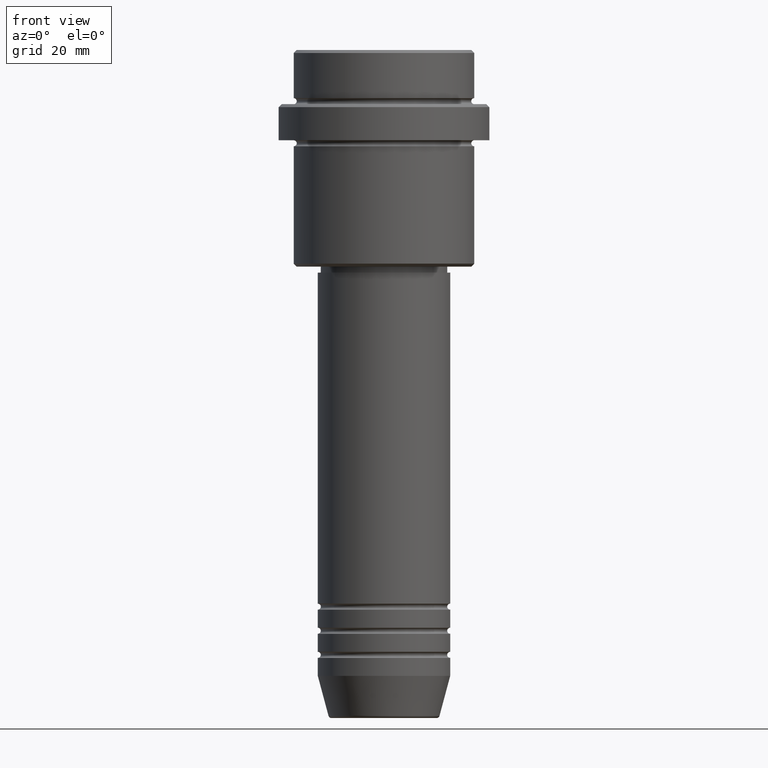
[diagram: clean part render]
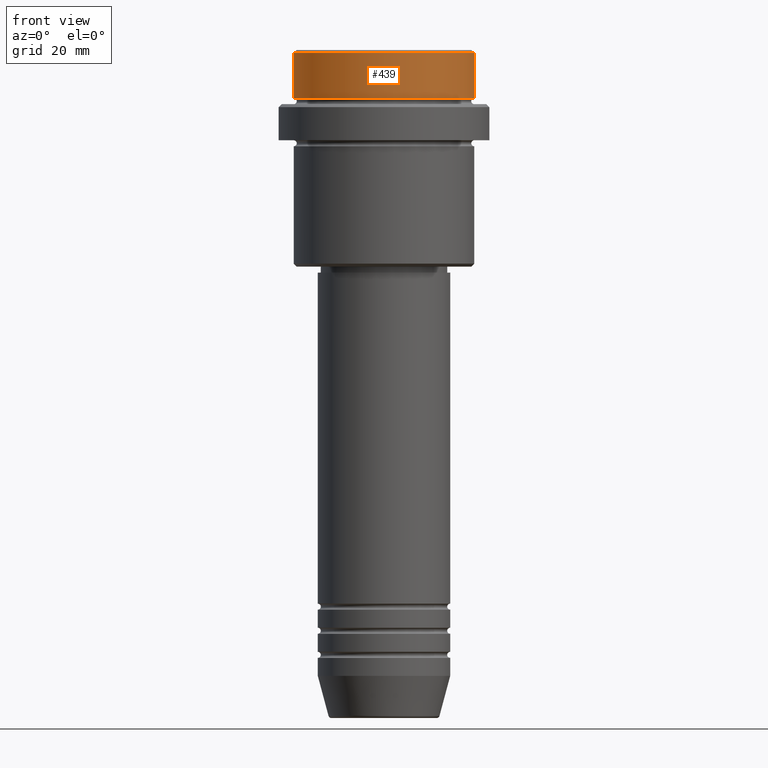
[diagram: same view with one face highlighted and labeled with its STEP entity id]
A machine part, front view. The second image highlights one B-rep face of the part: STEP entity #439.
In plain terms, the highlighted cylindrical surface (partial cylindrical patch) has radius 15 mm, axis along (-0, -0, 1).
Its self-contained STEP definition (entity closure, byte-faithful):
#1 = DIRECTION ( 'NONE',  ( 1.000000000000000000, 0.000000000000000000, 0.000000000000000000 ) ) ;
#15 = CARTESIAN_POINT ( 'NONE',  ( 0.000000000000000000, 0.000000000000000000, -7.999999999999998224 ) ) ;
#55 = VERTEX_POINT ( 'NONE', #1334 ) ;
#63 = EDGE_LOOP ( 'NONE', ( #408, #516, #904, #1338 ) ) ;
#175 = VERTEX_POINT ( 'NONE', #430 ) ;
#189 = CYLINDRICAL_SURFACE ( 'NONE', #1115, 15.00000000000000000 ) ;
#223 = AXIS2_PLACEMENT_3D ( 'NONE', #631, #873, #1282 ) ;
#285 = CIRCLE ( 'NONE', #223, 15.00000000000000000 ) ;
#295 = DIRECTION ( 'NONE',  ( 1.000000000000000000, 0.000000000000000000, 0.000000000000000000 ) ) ;
#306 = DIRECTION ( 'NONE',  ( -0.000000000000000000, -0.000000000000000000, 1.000000000000000000 ) ) ;
#408 = ORIENTED_EDGE ( 'NONE', *, *, #720, .F. ) ;
#430 = CARTESIAN_POINT ( 'NONE',  ( 15.00000000000000000, 0.000000000000000000, -0.4999999999999970024 ) ) ;
#439 = ADVANCED_FACE ( 'NONE', ( #1348 ), #189, .T. ) ;
#488 = LINE ( 'NONE', #932, #787 ) ;
#516 = ORIENTED_EDGE ( 'NONE', *, *, #1037, .T. ) ;
#565 = LINE ( 'NONE', #1396, #1353 ) ;
#631 = CARTESIAN_POINT ( 'NONE',  ( 0.000000000000000000, 0.000000000000000000, -0.4999999999999970024 ) ) ;
#695 = CIRCLE ( 'NONE', #809, 15.00000000000000000 ) ;
#696 = VERTEX_POINT ( 'NONE', #723 ) ;
#720 = EDGE_CURVE ( 'NONE', #800, #55, #565, .T. ) ;
#723 = CARTESIAN_POINT ( 'NONE',  ( 15.00000000000000000, 0.000000000000000000, -7.999999999999998224 ) ) ;
#787 = VECTOR ( 'NONE', #1362, 1000.000000000000000 ) ;
#800 = VERTEX_POINT ( 'NONE', #1359 ) ;
#809 = AXIS2_PLACEMENT_3D ( 'NONE', #15, #993, #1 ) ;
#873 = DIRECTION ( 'NONE',  ( 0.000000000000000000, 0.000000000000000000, -1.000000000000000000 ) ) ;
#904 = ORIENTED_EDGE ( 'NONE', *, *, #1288, .T. ) ;
#932 = CARTESIAN_POINT ( 'NONE',  ( 15.00000000000000000, 0.000000000000000000, 0.000000000000000000 ) ) ;
#993 = DIRECTION ( 'NONE',  ( -0.000000000000000000, -0.000000000000000000, 1.000000000000000000 ) ) ;
#1037 = EDGE_CURVE ( 'NONE', #800, #696, #695, .T. ) ;
#1115 = AXIS2_PLACEMENT_3D ( 'NONE', #1192, #1277, #295 ) ;
#1192 = CARTESIAN_POINT ( 'NONE',  ( 0.000000000000000000, 0.000000000000000000, 0.000000000000000000 ) ) ;
#1277 = DIRECTION ( 'NONE',  ( -0.000000000000000000, -0.000000000000000000, 1.000000000000000000 ) ) ;
#1282 = DIRECTION ( 'NONE',  ( 1.000000000000000000, 0.000000000000000000, 0.000000000000000000 ) ) ;
#1288 = EDGE_CURVE ( 'NONE', #696, #175, #488, .T. ) ;
#1324 = EDGE_CURVE ( 'NONE', #175, #55, #285, .T. ) ;
#1334 = CARTESIAN_POINT ( 'NONE',  ( -15.00000000000000000, 1.836970198721029589E-15, -0.4999999999999970024 ) ) ;
#1338 = ORIENTED_EDGE ( 'NONE', *, *, #1324, .T. ) ;
#1348 = FACE_OUTER_BOUND ( 'NONE', #63, .T. ) ;
#1353 = VECTOR ( 'NONE', #306, 1000.000000000000000 ) ;
#1359 = CARTESIAN_POINT ( 'NONE',  ( -15.00000000000000000, 1.836970198721029589E-15, -7.999999999999998224 ) ) ;
#1362 = DIRECTION ( 'NONE',  ( -0.000000000000000000, -0.000000000000000000, 1.000000000000000000 ) ) ;
#1396 = CARTESIAN_POINT ( 'NONE',  ( -15.00000000000000000, 1.836970198721029589E-15, 0.000000000000000000 ) ) ;